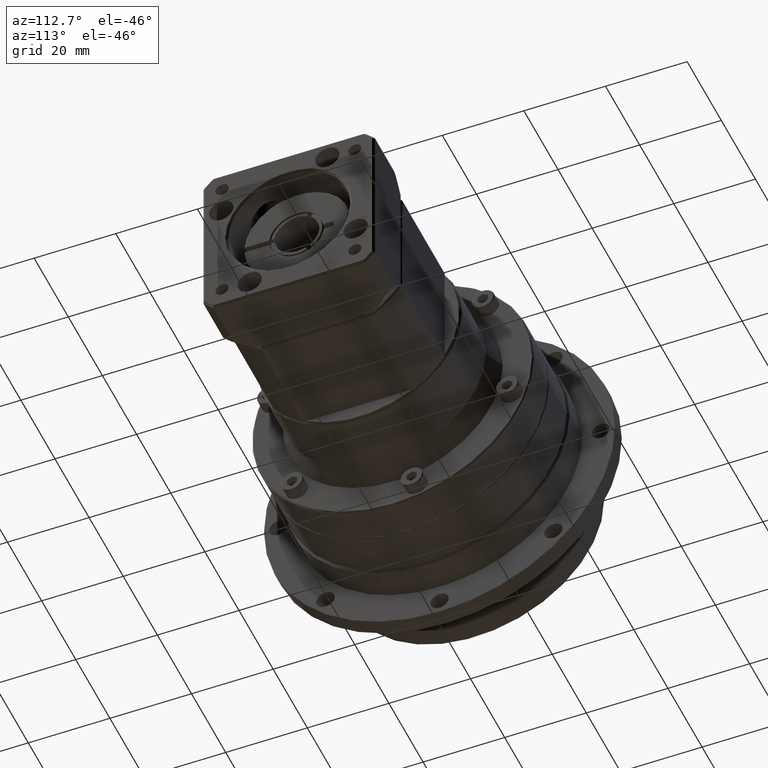
[diagram: clean part render]
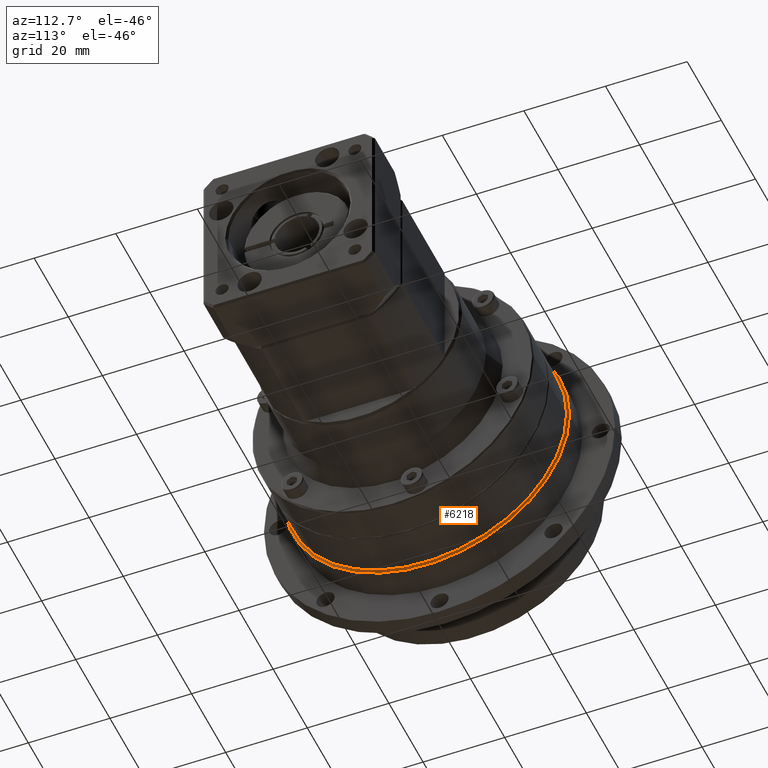
[diagram: same view with one face highlighted and labeled with its STEP entity id]
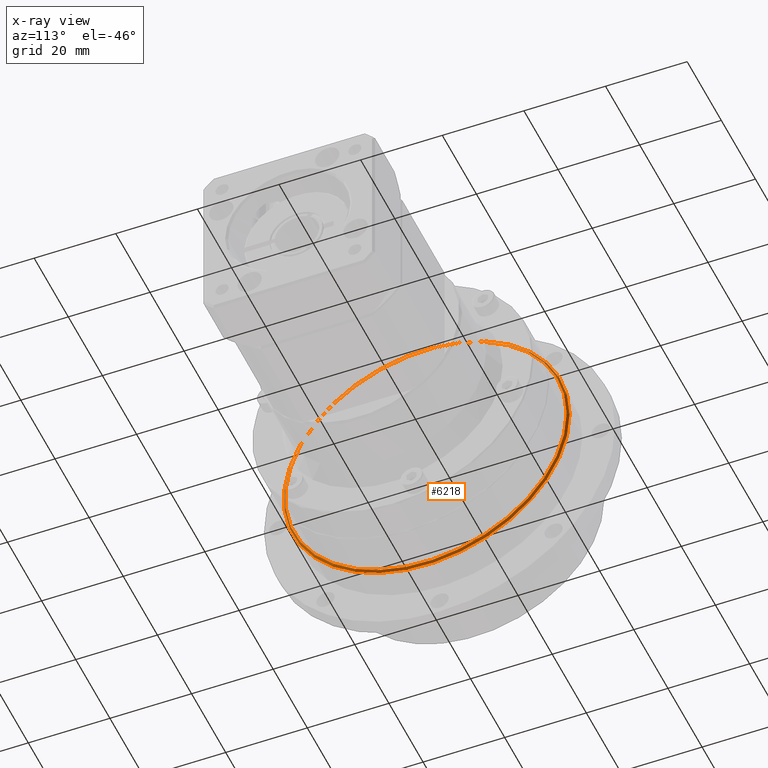
[diagram: x-ray of the same camera — body ghosted, the highlighted face saturated]
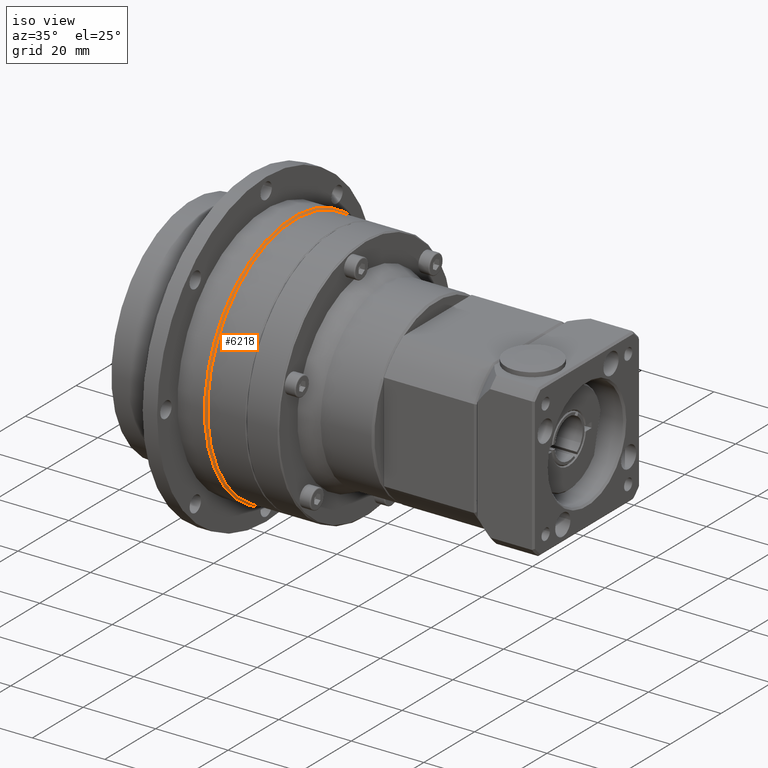
[diagram: same view with one face highlighted and labeled with its STEP entity id]
A machine part, auxiliary view. The second image highlights one B-rep face of the part: STEP entity #6218.
The next image is the same camera in x-ray: the body ghosted, the highlighted face saturated — about 10% of this face is hidden behind the body in this view.
A second angle (iso view) of the same face is appended — the face is thin or edge-on in the first view.
In plain terms, the highlighted conical surface has half-angle 45 deg.
Its self-contained STEP definition (entity closure, byte-faithful):
#234=CONICAL_SURFACE('',#6909,34.75,45.0000000000001);
#1124=FACE_BOUND('',#2102,.T.);
#1537=FACE_OUTER_BOUND('',#2101,.T.);
#2101=EDGE_LOOP('',(#5095));
#2102=EDGE_LOOP('',(#5096));
#2625=CIRCLE('',#6910,34.5);
#2626=CIRCLE('',#6911,35.);
#3120=VERTEX_POINT('',#10550);
#3121=VERTEX_POINT('',#10552);
#3834=EDGE_CURVE('',#3120,#3120,#2625,.T.);
#3835=EDGE_CURVE('',#3121,#3121,#2626,.T.);
#5095=ORIENTED_EDGE('',*,*,#3834,.F.);
#5096=ORIENTED_EDGE('',*,*,#3835,.T.);
#6218=ADVANCED_FACE('',(#1537,#1124),#234,.T.);
#6909=AXIS2_PLACEMENT_3D('',#10549,#8428,#8429);
#6910=AXIS2_PLACEMENT_3D('',#10551,#8430,#8431);
#6911=AXIS2_PLACEMENT_3D('',#10553,#8432,#8433);
#8428=DIRECTION('center_axis',(-1.,-6.66133814775025E-16,-5.41298131925173E-16));
#8429=DIRECTION('ref_axis',(-6.66133814774957E-16,1.,-1.25885413204685E-13));
#8430=DIRECTION('center_axis',(1.,6.66133814775025E-16,5.41298131925173E-16));
#8431=DIRECTION('ref_axis',(5.41298131925257E-16,-1.25885413204685E-13,
-1.));
#8432=DIRECTION('center_axis',(1.,6.66133814775025E-16,5.41298131925173E-16));
#8433=DIRECTION('ref_axis',(5.41298131925257E-16,-1.25885413204685E-13,
-1.));
#10549=CARTESIAN_POINT('Origin',(7.73376053270699,-19.2502964923676,20.3816875810055));
#10550=CARTESIAN_POINT('',(7.98376053270697,15.2497035076324,20.3816875810012));
#10551=CARTESIAN_POINT('Origin',(7.98376053270699,-19.2502964923676,20.3816875810055));
#10552=CARTESIAN_POINT('',(7.48376053270697,15.7497035076324,20.3816875810011));
#10553=CARTESIAN_POINT('Origin',(7.48376053270699,-19.2502964923676,20.3816875810055));